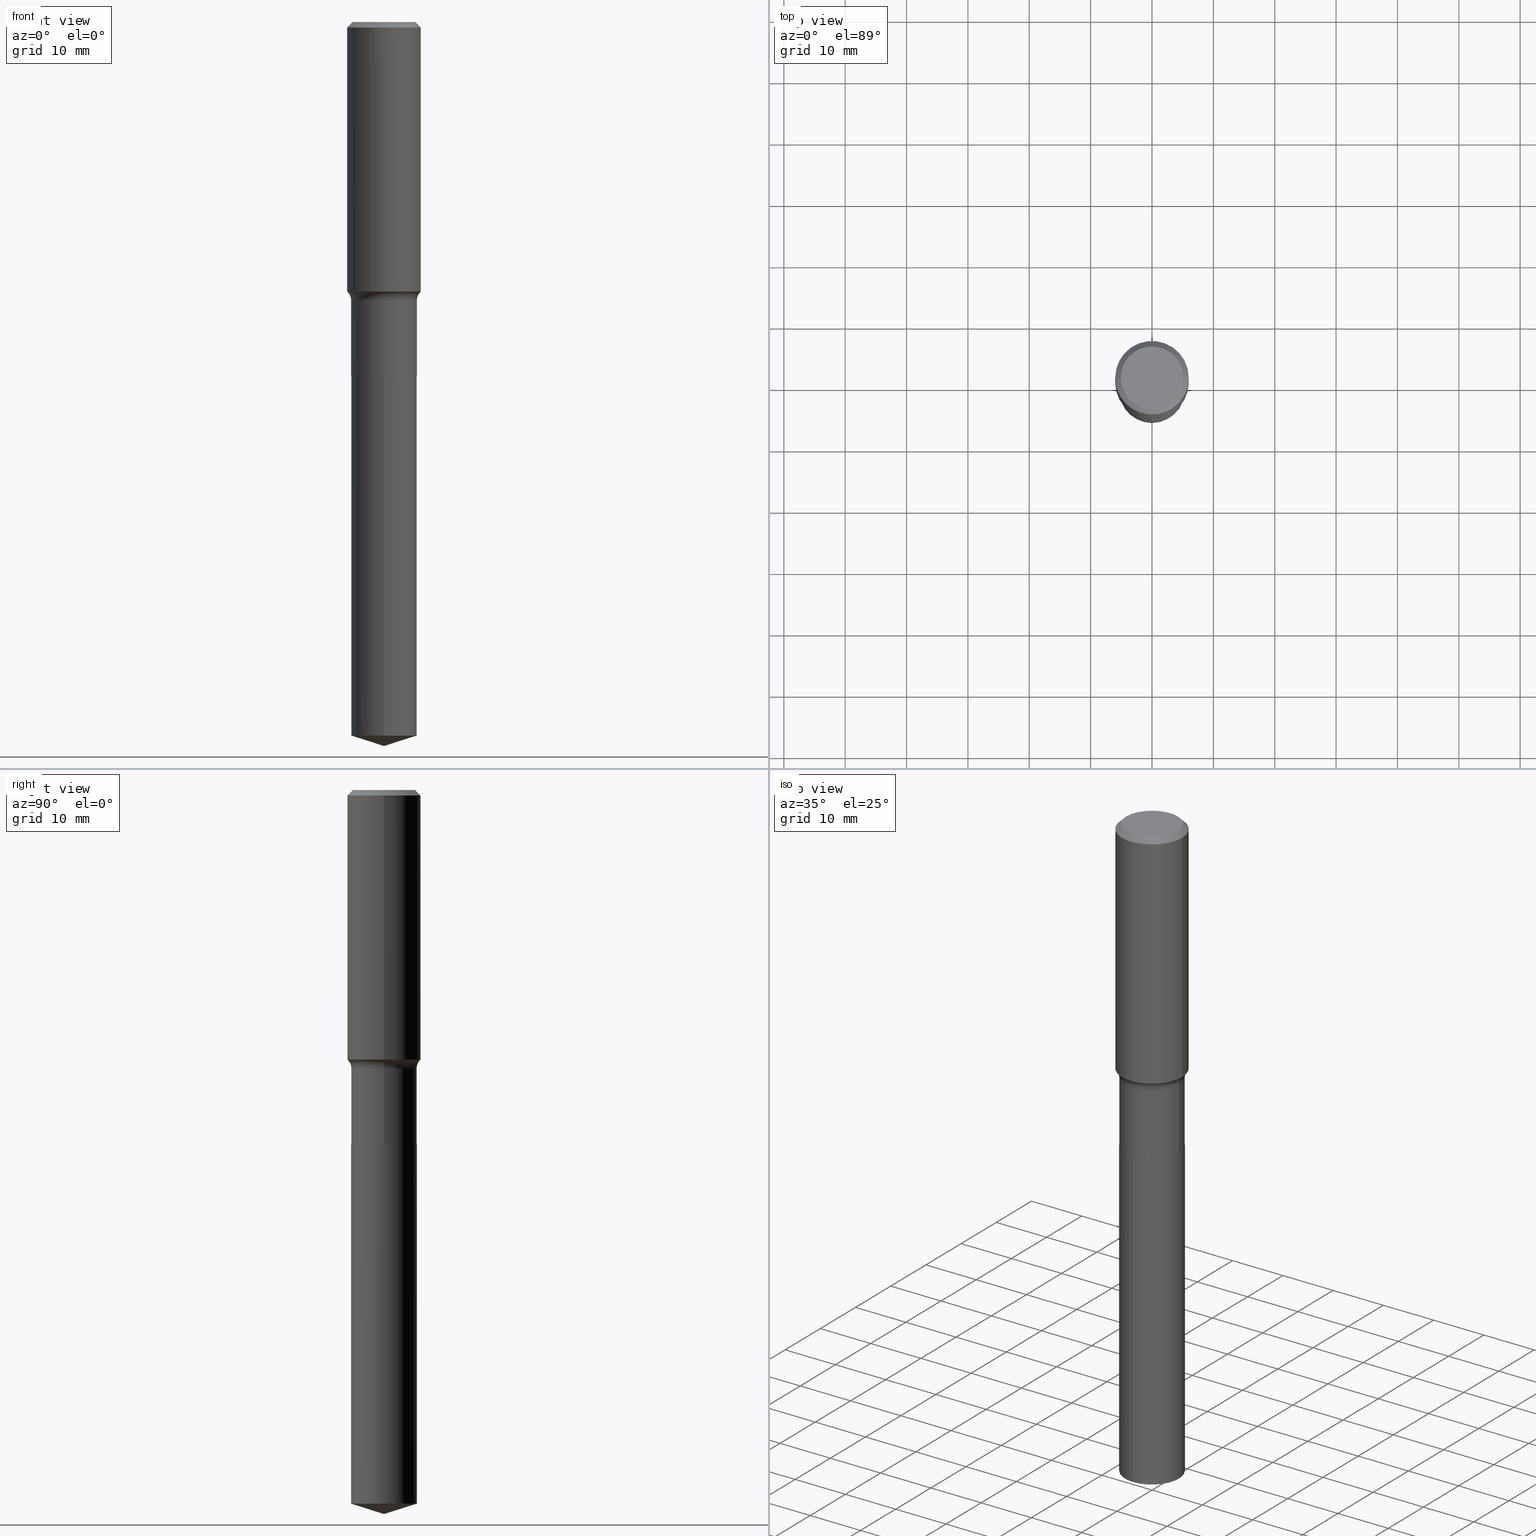
[diagram: canonical four-view strip — front | top / right | iso, engineering-drawing reading convention]
A machine part, canonical four-view strip (front | top / right | iso — engineering-drawing reading convention). The complete STEP part file that produces these views, byte-faithful:
ISO-10303-21;
HEADER;
FILE_DESCRIPTION (( 'STEP AP203' ),
    '1' );
FILE_NAME ('64181.STEP',
    '2024-04-19T15:29:50',
    ( '' ),
    ( '' ),
    'SwSTEP 2.0',
    'SolidWorks 2023',
    '' );
FILE_SCHEMA (( 'CONFIG_CONTROL_DESIGN' ));
ENDSEC;

DATA;
#1 = VECTOR ( 'NONE', #286, 39.37007874015748143 ) ;
#2 = DIRECTION ( 'NONE',  ( -2.445468806185136597E-29, 3.491481338843145583E-15, 1.000000000000000000 ) ) ;
#3 = AXIS2_PLACEMENT_3D ( 'NONE', #55, #200, #362 ) ;
#4 = AXIS2_PLACEMENT_3D ( 'NONE', #156, #394, #347 ) ;
#5 = DIRECTION ( 'NONE',  ( -2.445468806185136597E-29, 3.491481338843145583E-15, 1.000000000000000000 ) ) ;
#6 = ORIENTED_EDGE ( 'NONE', *, *, #278, .F. ) ;
#7 = DIRECTION ( 'NONE',  ( -6.982962677686265922E-15, -1.000000000000000000, 3.500519750498706404E-15 ) ) ;
#8 = CARTESIAN_POINT ( 'NONE',  ( 0.2886499999999999622, -8.255607625694609865E-15, -1.787199999999999900 ) ) ;
#9 = CARTESIAN_POINT ( 'NONE',  ( 8.664295980313993487E-31, -1.237031838352134079E-16, -0.03543000000000021826 ) ) ;
#10 = VERTEX_POINT ( 'NONE', #350 ) ;
#11 =( LENGTH_UNIT ( ) NAMED_UNIT ( * ) SI_UNIT ( $, .METRE. ) );
#12 = CIRCLE ( 'NONE', #284, 0.07799999999999995826 ) ;
#13 = AXIS2_PLACEMENT_3D ( 'NONE', #298, #184, #492 ) ;
#14 = VERTEX_POINT ( 'NONE', #455 ) ;
#15 = CARTESIAN_POINT ( 'NONE',  ( 1.496758272878763482E-15, 0.2106499999999920936, -2.271700000000000053 ) ) ;
#16 = EDGE_CURVE ( 'NONE', #291, #212, #12, .T. ) ;
#17 = LINE ( 'NONE', #220, #214 ) ;
#18 = CARTESIAN_POINT ( 'NONE',  ( 5.554148752607681363E-29, -7.929852416780550200E-15, -2.271199999999999442 ) ) ;
#19 = CIRCLE ( 'NONE', #315, 0.2362000000000002153 ) ;
#20 = PERSON_AND_ORGANIZATION ( #82, #462 ) ;
#21 = AXIS2_PLACEMENT_3D ( 'NONE', #483, #399, #169 ) ;
#22 = CC_DESIGN_DATE_AND_TIME_ASSIGNMENT ( #164, #370, ( #183 ) ) ;
#23 = CALENDAR_DATE ( 2024, 19, 4 ) ;
#24 = AXIS2_PLACEMENT_3D ( 'NONE', #375, #176, #331 ) ;
#25 = PERSON_AND_ORGANIZATION ( #82, #462 ) ;
#26 = CARTESIAN_POINT ( 'NONE',  ( -0.2361999999999999933, 1.525672600634282748E-15, -0.03543000000000021826 ) ) ;
#27 = PERSON_AND_ORGANIZATION_ROLE ( 'design_owner' ) ;
#28 = AXIS2_PLACEMENT_3D ( 'NONE', #269, #110, #44 ) ;
#29 = APPLICATION_PROTOCOL_DEFINITION ( 'international standard', 'config_control_design', 1994, #467 ) ;
#30 = CYLINDRICAL_SURFACE ( 'NONE', #144, 0.2362000000000001043 ) ;
#31 = CYLINDRICAL_SURFACE ( 'NONE', #117, 0.2362000000000001043 ) ;
#32 = DIRECTION ( 'NONE',  ( -2.445468806185136877E-29, 3.491481338843145188E-15, 1.000000000000000000 ) ) ;
#33 = CARTESIAN_POINT ( 'NONE',  ( 0.2106500000000000039, -9.400813504835161960E-15, -2.271199999999999442 ) ) ;
#34 = AXIS2_PLACEMENT_3D ( 'NONE', #458, #388, #225 ) ;
#35 = ORIENTED_EDGE ( 'NONE', *, *, #317, .T. ) ;
#36 = ORIENTED_EDGE ( 'NONE', *, *, #434, .T. ) ;
#37 = CYLINDRICAL_SURFACE ( 'NONE', #288, 0.2106500000000000039 ) ;
#38 = DIRECTION ( 'NONE',  ( -2.445468806185136597E-29, 3.491481338843145583E-15, 1.000000000000000000 ) ) ;
#39 = ORIENTED_EDGE ( 'NONE', *, *, #441, .F. ) ;
#40 = DIRECTION ( 'NONE',  ( -6.982962677686265922E-15, -1.000000000000000000, 3.890597664843479129E-15 ) ) ;
#41 = VECTOR ( 'NONE', #98, 39.37007874015748143 ) ;
#42 = AXIS2_PLACEMENT_3D ( 'NONE', #132, #437, #247 ) ;
#43 = CARTESIAN_POINT ( 'NONE',  ( 1.119856337333996399E-28, -1.598837658358541571E-14, -4.579282310122642308 ) ) ;
#44 = DIRECTION ( 'NONE',  ( 1.000000000000000000, -6.982962677686266711E-15, 4.876140833081945105E-29 ) ) ;
#45 = ORIENTED_EDGE ( 'NONE', *, *, #66, .F. ) ;
#46 = ORIENTED_EDGE ( 'NONE', *, *, #101, .F. ) ;
#47 = LINE ( 'NONE', #230, #479 ) ;
#48 = CARTESIAN_POINT ( 'NONE',  ( -1.470961088054556343E-15, -0.2106500000000079420, -2.271699999999998720 ) ) ;
#49 = AXIS2_PLACEMENT_3D ( 'NONE', #381, #426, #100 ) ;
#50 = CARTESIAN_POINT ( 'NONE',  ( 5.554148752607681363E-29, -7.929852416780550200E-15, -2.271199999999999442 ) ) ;
#51 = EDGE_CURVE ( 'NONE', #194, #145, #303, .T. ) ;
#52 = AXIS2_PLACEMENT_3D ( 'NONE', #446, #383, #40 ) ;
#53 = DIRECTION ( 'NONE',  ( -2.445499716987026041E-29, 3.491437072815506423E-15, 1.000000000000000000 ) ) ;
#54 = COORDINATED_UNIVERSAL_TIME_OFFSET ( 5, 0, .BEHIND. ) ;
#55 = CARTESIAN_POINT ( 'NONE',  ( 5.555371487010773044E-29, -7.931598157449970914E-15, -2.271699999999999608 ) ) ;
#56 = ORIENTED_EDGE ( 'NONE', *, *, #385, .T. ) ;
#57 = CARTESIAN_POINT ( 'NONE',  ( 0.000000000000000000, 0.000000000000000000, 0.000000000000000000 ) ) ;
#58 = LOCAL_TIME ( 11, 29, 50.00000000000000000, #95 ) ;
#59 = COORDINATED_UNIVERSAL_TIME_OFFSET ( 5, 0, .BEHIND. ) ;
#60 = ORIENTED_EDGE ( 'NONE', *, *, #441, .T. ) ;
#61 = DIRECTION ( 'NONE',  ( 2.438088387897960049E-29, -3.491481338843145188E-15, -1.000000000000000000 ) ) ;
#62 = AXIS2_PLACEMENT_3D ( 'NONE', #43, #356, #161 ) ;
#63 = DIRECTION ( 'NONE',  ( -6.659769872151631300E-15, -0.9537169507482265995, 0.3007057995042740073 ) ) ;
#64 = CARTESIAN_POINT ( 'NONE',  ( 0.000000000000000000, 0.000000000000000000, 0.000000000000000000 ) ) ;
#65 = DIRECTION ( 'NONE',  ( -2.445468806185136597E-29, 3.491481338843145583E-15, 1.000000000000000000 ) ) ;
#66 = EDGE_CURVE ( 'NONE', #10, #457, #463, .T. ) ;
#67 = DIRECTION ( 'NONE',  ( -2.445499716987026041E-29, 3.491437072815506423E-15, 1.000000000000000000 ) ) ;
#68 = CIRCLE ( 'NONE', #28, 0.2007700000000000040 ) ;
#69 = PLANE ( 'NONE',  #152 ) ;
#70 = PRODUCT_DEFINITION_SHAPE ( 'NONE', 'NONE',  #183 ) ;
#71 = CARTESIAN_POINT ( 'NONE',  ( 4.229359755644966557E-29, -6.038404834582329294E-15, -1.729467881556277398 ) ) ;
#72 = AXIS2_PLACEMENT_3D ( 'NONE', #9, #83, #427 ) ;
#73 = PRODUCT_RELATED_PRODUCT_CATEGORY ( 'detail', '', ( #219 ) ) ;
#74 = FACE_OUTER_BOUND ( 'NONE', #440, .T. ) ;
#75 = CIRCLE ( 'NONE', #3, 0.2101500000000000035 ) ;
#76 = VERTEX_POINT ( 'NONE', #461 ) ;
#77 = DIRECTION ( 'NONE',  ( -2.445468806185136877E-29, 3.491481338843145188E-15, 1.000000000000000000 ) ) ;
#78 = SECURITY_CLASSIFICATION ( '', '', #468 ) ;
#79 = ORIENTED_EDGE ( 'NONE', *, *, #257, .F. ) ;
#80 = DIRECTION ( 'NONE',  ( -2.445499716987026041E-29, 3.491437072815506423E-15, 1.000000000000000000 ) ) ;
#81 = DIRECTION ( 'NONE',  ( 0.7071067811865453523, -7.319954787623248157E-15, -0.7071067811865496822 ) ) ;
#82 = PERSON ( 'UNSPECIFIED', 'UNSPECIFIED', 'UNSPECIFIED', ('UNSPECIFIED'), ('UNSPECIFIED'), ('UNSPECIFIED') ) ;
#83 = DIRECTION ( 'NONE',  ( 2.445468806185136597E-29, -3.491481338843145583E-15, -1.000000000000000000 ) ) ;
#84 = MANIFOLD_SOLID_BREP ( 'Body-Move/Copy2[2]', #430 ) ;
#85 = DIRECTION ( 'NONE',  ( -2.445499716987026041E-29, 3.491437072815506423E-15, 1.000000000000000000 ) ) ;
#86 = ORIENTED_EDGE ( 'NONE', *, *, #134, .T. ) ;
#87 = DIRECTION ( 'NONE',  ( -6.982962677686266711E-15, -1.000000000000000000, 3.491481338843145583E-15 ) ) ;
#88 = APPROVAL_PERSON_ORGANIZATION ( #435, #226, #283 ) ;
#89 = EDGE_CURVE ( 'NONE', #391, #194, #68, .T. ) ;
#90 = COORDINATED_UNIVERSAL_TIME_OFFSET ( 5, 0, .BEHIND. ) ;
#91 = CALENDAR_DATE ( 2024, 19, 4 ) ;
#92 = CIRCLE ( 'NONE', #271, 0.07799999999999995826 ) ;
#93 = ORIENTED_EDGE ( 'NONE', *, *, #289, .F. ) ;
#94 = CC_DESIGN_PERSON_AND_ORGANIZATION_ASSIGNMENT ( #25, #167, ( #78 ) ) ;
#95 = COORDINATED_UNIVERSAL_TIME_OFFSET ( 5, 0, .BEHIND. ) ;
#96 = EDGE_CURVE ( 'NONE', #372, #76, #188, .T. ) ;
#97 = LINE ( 'NONE', #330, #354 ) ;
#98 = DIRECTION ( 'NONE',  ( 0.7071067811866199593, -2.468850131083015945E-15, 0.7071067811864750752 ) ) ;
#99 = EDGE_LOOP ( 'NONE', ( #453, #111 ) ) ;
#100 = DIRECTION ( 'NONE',  ( 1.000000000000000000, -6.982962677686266711E-15, 0.000000000000000000 ) ) ;
#101 = EDGE_CURVE ( 'NONE', #485, #487, #401, .T. ) ;
#102 = LINE ( 'NONE', #178, #373 ) ;
#103 = AXIS2_PLACEMENT_3D ( 'NONE', #254, #2, #210 ) ;
#104 = CARTESIAN_POINT ( 'NONE',  ( -5.008488096090115757E-47, 7.150793614331959538E-33, 2.048068690724057264E-18 ) ) ;
#105 = DIRECTION ( 'NONE',  ( 1.000000000000000000, -6.982962677686266711E-15, 4.876176775795935793E-29 ) ) ;
#106 = DIRECTION ( 'NONE',  ( -6.982962677686265922E-15, -1.000000000000000000, 2.593731776562319814E-15 ) ) ;
#107 = CIRCLE ( 'NONE', #227, 0.2361999999999999933 ) ;
#108 = ORIENTED_EDGE ( 'NONE', *, *, #436, .F. ) ;
#109 =( CONVERSION_BASED_UNIT ( 'INCH', #429 ) LENGTH_UNIT ( ) NAMED_UNIT ( #459 ) );
#110 = DIRECTION ( 'NONE',  ( -2.445468806185136597E-29, 3.491481338843145583E-15, 1.000000000000000000 ) ) ;
#111 = ORIENTED_EDGE ( 'NONE', *, *, #158, .T. ) ;
#112 = DIRECTION ( 'NONE',  ( 1.000000000000000000, -6.982962677686265922E-15, 4.876176775795935793E-29 ) ) ;
#113 = CARTESIAN_POINT ( 'NONE',  ( 0.2007700000000000040, -1.560767496960719672E-15, 4.096137381458473721E-18 ) ) ;
#114 = ORIENTED_EDGE ( 'NONE', *, *, #434, .F. ) ;
#115 = DIRECTION ( 'NONE',  ( -2.445468806185136597E-29, 3.491481338843145583E-15, 1.000000000000000000 ) ) ;
#116 = ORIENTED_EDGE ( 'NONE', *, *, #257, .T. ) ;
#117 = AXIS2_PLACEMENT_3D ( 'NONE', #258, #38, #105 ) ;
#118 = EDGE_LOOP ( 'NONE', ( #165, #448, #108 ) ) ;
#119 = CARTESIAN_POINT ( 'NONE',  ( 4.370541850414076546E-29, -6.239975448780469270E-15, -1.787199999999999900 ) ) ;
#120 = LOCAL_TIME ( 11, 29, 50.00000000000000000, #245 ) ;
#121 = DIRECTION ( 'NONE',  ( -2.445468806185136597E-29, 3.491481338843145583E-15, 1.000000000000000000 ) ) ;
#122 = LINE ( 'NONE', #240, #138 ) ;
#123 =( NAMED_UNIT ( * ) SI_UNIT ( $, .STERADIAN. ) SOLID_ANGLE_UNIT ( ) );
#124 = CLOSED_SHELL ( 'NONE', ( #342, #175, #473, #328, #384 ) ) ;
#125 = CC_DESIGN_SECURITY_CLASSIFICATION ( #78, ( #374 ) ) ;
#126 = PERSON_AND_ORGANIZATION_ROLE ( 'design_supplier' ) ;
#127 = DIRECTION ( 'NONE',  ( -2.445468806185136597E-29, 3.491481338843145583E-15, 1.000000000000000000 ) ) ;
#128 = PERSON_AND_ORGANIZATION ( #82, #462 ) ;
#129 = ORIENTED_EDGE ( 'NONE', *, *, #223, .T. ) ;
#130 = DATE_TIME_ROLE ( 'classification_date' ) ;
#131 = VERTEX_POINT ( 'NONE', #357 ) ;
#132 = CARTESIAN_POINT ( 'NONE',  ( 0.000000000000000000, 0.000000000000000000, 0.000000000000000000 ) ) ;
#133 = CONICAL_SURFACE ( 'NONE', #432, 124.8659371009149908, 1.265363707695891460 ) ;
#134 = EDGE_CURVE ( 'NONE', #10, #131, #97, .T. ) ;
#135 = AXIS2_PLACEMENT_3D ( 'NONE', #251, #147, #106 ) ;
#136 = ORIENTED_EDGE ( 'NONE', *, *, #162, .F. ) ;
#137 = ORIENTED_EDGE ( 'NONE', *, *, #443, .T. ) ;
#138 = VECTOR ( 'NONE', #154, 39.37007874015748143 ) ;
#139 = DIRECTION ( 'NONE',  ( -2.445468806185136597E-29, 3.491481338843145583E-15, 1.000000000000000000 ) ) ;
#140 = ADVANCED_FACE ( 'NONE', ( #209 ), #222, .T. ) ;
#141 = EDGE_CURVE ( 'NONE', #179, #389, #75, .T. ) ;
#142 = CARTESIAN_POINT ( 'NONE',  ( 0.2362000000000002153, -7.687780619051827397E-15, -1.729467881556277398 ) ) ;
#143 = CIRCLE ( 'NONE', #135, 0.2106500000000000039 ) ;
#144 = AXIS2_PLACEMENT_3D ( 'NONE', #64, #139, #376 ) ;
#145 = VERTEX_POINT ( 'NONE', #319 ) ;
#146 = DIRECTION ( 'NONE',  ( 1.000000000000000000, -6.982962677686263555E-15, 0.000000000000000000 ) ) ;
#147 = DIRECTION ( 'NONE',  ( -2.445499716987026041E-29, 3.491437072815506423E-15, 1.000000000000000000 ) ) ;
#148 = CC_DESIGN_PERSON_AND_ORGANIZATION_ASSIGNMENT ( #205, #172, ( #374 ) ) ;
#149 = ORIENTED_EDGE ( 'NONE', *, *, #16, .T. ) ;
#150 = DIRECTION ( 'NONE',  ( 1.000000000000000000, -6.982962677686267499E-15, 0.000000000000000000 ) ) ;
#151 = ORIENTED_EDGE ( 'NONE', *, *, #450, .F. ) ;
#152 = AXIS2_PLACEMENT_3D ( 'NONE', #104, #61, #377 ) ;
#153 = ORIENTED_EDGE ( 'NONE', *, *, #447, .T. ) ;
#154 = DIRECTION ( 'NONE',  ( -2.445499716987026041E-29, 3.491437072815506423E-15, 1.000000000000000000 ) ) ;
#155 = EDGE_LOOP ( 'NONE', ( #329, #280, #371, #151 ) ) ;
#156 = CARTESIAN_POINT ( 'NONE',  ( 0.000000000000000000, 0.000000000000000000, 0.000000000000000000 ) ) ;
#157 = CARTESIAN_POINT ( 'NONE',  ( 0.2361999999999999933, -1.744152810908849053E-15, -0.03543000000000021826 ) ) ;
#158 = EDGE_CURVE ( 'NONE', #194, #391, #275, .T. ) ;
#159 = LOCAL_TIME ( 11, 29, 50.00000000000000000, #54 ) ;
#160 = ORIENTED_EDGE ( 'NONE', *, *, #185, .F. ) ;
#161 = DIRECTION ( 'NONE',  ( -6.982962677686265922E-15, -1.000000000000000000, 2.593731776562319814E-15 ) ) ;
#162 = EDGE_CURVE ( 'NONE', #391, #320, #403, .T. ) ;
#163 = CARTESIAN_POINT ( 'NONE',  ( 1.496758272878762693E-15, 0.2106499999999839612, -4.579282310122643196 ) ) ;
#164 = DATE_AND_TIME ( #318, #159 ) ;
#165 = ORIENTED_EDGE ( 'NONE', *, *, #134, .F. ) ;
#166 = CC_DESIGN_PERSON_AND_ORGANIZATION_ASSIGNMENT ( #277, #475, ( #183 ) ) ;
#167 = PERSON_AND_ORGANIZATION_ROLE ( 'classification_officer' ) ;
#168 = CIRCLE ( 'NONE', #49, 0.2362000000000002153 ) ;
#169 = DIRECTION ( 'NONE',  ( 1.000000000000000000, -6.982962677686263555E-15, 0.000000000000000000 ) ) ;
#170 = ADVANCED_FACE ( 'NONE', ( #324 ), #476, .T. ) ;
#171 = CARTESIAN_POINT ( 'NONE',  ( 4.370541850414076546E-29, -6.239975448780469270E-15, -1.787199999999999900 ) ) ;
#172 = PERSON_AND_ORGANIZATION_ROLE ( 'creator' ) ;
#173 = ADVANCED_FACE ( 'NONE', ( #253 ), #31, .T. ) ;
#174 =( GEOMETRIC_REPRESENTATION_CONTEXT ( 3 ) GLOBAL_UNCERTAINTY_ASSIGNED_CONTEXT ( ( #387 ) ) GLOBAL_UNIT_ASSIGNED_CONTEXT ( ( #109, #312, #123 ) ) REPRESENTATION_CONTEXT ( 'NONE', 'WORKASPACE' ) );
#175 = ADVANCED_FACE ( 'NONE', ( #452 ), #133, .T. ) ;
#176 = DIRECTION ( 'NONE',  ( -2.445468806185136597E-29, 3.491481338843145583E-15, 1.000000000000000000 ) ) ;
#177 = APPROVAL ( #439, 'UNSPECIFIED' ) ;
#178 = CARTESIAN_POINT ( 'NONE',  ( -0.2106499999999999762, 1.496758272878650872E-15, -1.036173676762195916E-29 ) ) ;
#179 = VERTEX_POINT ( 'NONE', #390 ) ;
#180 = FACE_OUTER_BOUND ( 'NONE', #260, .T. ) ;
#181 = CIRCLE ( 'NONE', #62, 0.2106500000000000039 ) ;
#182 = EDGE_LOOP ( 'NONE', ( #217, #229, #149, #221 ) ) ;
#183 = PRODUCT_DEFINITION ( 'UNKNOWN', '', #374, #304 ) ;
#184 = DIRECTION ( 'NONE',  ( 2.445499716987025761E-29, -3.491437072815506423E-15, -1.000000000000000000 ) ) ;
#185 = EDGE_CURVE ( 'NONE', #487, #485, #409, .T. ) ;
#186 = ORIENTED_EDGE ( 'NONE', *, *, #158, .F. ) ;
#187 = DIRECTION ( 'NONE',  ( 2.445468806185136597E-29, -3.491481338843145583E-15, -1.000000000000000000 ) ) ;
#188 = CIRCLE ( 'NONE', #299, 0.2106500000000000039 ) ;
#189 = FACE_OUTER_BOUND ( 'NONE', #491, .T. ) ;
#190 = DIRECTION ( 'NONE',  ( 1.000000000000000000, -6.982962677686261977E-15, 0.000000000000000000 ) ) ;
#191 = ORIENTED_EDGE ( 'NONE', *, *, #101, .T. ) ;
#192 = CARTESIAN_POINT ( 'NONE',  ( -0.2886499999999999622, -4.188993842008940352E-15, -1.787199999999999900 ) ) ;
#193 = AXIS2_PLACEMENT_3D ( 'NONE', #339, #416, #263 ) ;
#194 = VERTEX_POINT ( 'NONE', #113 ) ;
#195 = DIRECTION ( 'NONE',  ( 1.000000000000000000, -6.982962677686265922E-15, 0.000000000000000000 ) ) ;
#196 = VECTOR ( 'NONE', #77, 39.37007874015748143 ) ;
#197 = ADVANCED_FACE ( 'NONE', ( #231 ), #311, .F. ) ;
#198 = DIRECTION ( 'NONE',  ( -1.000000000000000000, 7.105427357601001859E-15, 0.000000000000000000 ) ) ;
#199 = AXIS2_PLACEMENT_3D ( 'NONE', #18, #65, #335 ) ;
#200 = DIRECTION ( 'NONE',  ( -2.445468806185136597E-29, 3.491481338843145583E-15, 1.000000000000000000 ) ) ;
#201 = DIRECTION ( 'NONE',  ( 1.000000000000000000, 0.000000000000000000, 0.000000000000000000 ) ) ;
#202 = AXIS2_PLACEMENT_3D ( 'NONE', #272, #85, #234 ) ;
#203 = CONICAL_SURFACE ( 'NONE', #327, 0.2101500000000000035, 0.7853981633975507526 ) ;
#204 = ADVANCED_FACE ( 'NONE', ( #307 ), #323, .T. ) ;
#205 = PERSON_AND_ORGANIZATION ( #82, #462 ) ;
#206 = EDGE_CURVE ( 'NONE', #212, #14, #474, .T. ) ;
#207 = TOROIDAL_SURFACE ( 'NONE', #34, 0.2886499999999999622, 0.07799999999999999989 ) ;
#208 = DIRECTION ( 'NONE',  ( -0.7071067811866199593, 7.493145998870616062E-15, 0.7071067811864750752 ) ) ;
#209 = FACE_OUTER_BOUND ( 'NONE', #456, .T. ) ;
#210 = DIRECTION ( 'NONE',  ( 1.000000000000000000, -6.982962677686263555E-15, 0.000000000000000000 ) ) ;
#211 = FACE_OUTER_BOUND ( 'NONE', #99, .T. ) ;
#212 = VERTEX_POINT ( 'NONE', #325 ) ;
#213 = CARTESIAN_POINT ( 'NONE',  ( -0.2362000000000002153, -4.360102892716971322E-15, -1.729467881556277398 ) ) ;
#214 = VECTOR ( 'NONE', #396, 39.37007874015748143 ) ;
#215 = ORIENTED_EDGE ( 'NONE', *, *, #89, .F. ) ;
#216 = CARTESIAN_POINT ( 'NONE',  ( 5.555371487010773044E-29, -7.931598157449970914E-15, -2.271699999999999608 ) ) ;
#217 = ORIENTED_EDGE ( 'NONE', *, *, #447, .F. ) ;
#218 = CARTESIAN_POINT ( 'NONE',  ( 5.555371487010773044E-29, -7.931598157449970914E-15, -2.271699999999999608 ) ) ;
#219 = PRODUCT ( '64181', '64181', '', ( #433 ) ) ;
#220 = CARTESIAN_POINT ( 'NONE',  ( -0.2362000000000001043, 1.678301941865357380E-15, -1.161852468318209317E-29 ) ) ;
#221 = ORIENTED_EDGE ( 'NONE', *, *, #206, .T. ) ;
#222 = CONICAL_SURFACE ( 'NONE', #21, 0.2101500000000000035, 0.7853981633975507526 ) ;
#223 = EDGE_CURVE ( 'NONE', #131, #485, #122, .T. ) ;
#224 = ORIENTED_EDGE ( 'NONE', *, *, #443, .F. ) ;
#225 = DIRECTION ( 'NONE',  ( 1.000000000000000000, -6.982962677686264344E-15, 4.883557194083111780E-29 ) ) ;
#226 = APPROVAL ( #241, 'UNSPECIFIED' ) ;
#227 = AXIS2_PLACEMENT_3D ( 'NONE', #237, #115, #353 ) ;
#228 = CARTESIAN_POINT ( 'NONE',  ( -8.491852860167406965E-28, 1.212378827047374463E-13, 34.72437874015748349 ) ) ;
#229 = ORIENTED_EDGE ( 'NONE', *, *, #248, .F. ) ;
#230 = CARTESIAN_POINT ( 'NONE',  ( 1.496758272878706487E-15, 0.2106499999999920936, -2.271700000000000053 ) ) ;
#231 = FACE_OUTER_BOUND ( 'NONE', #264, .T. ) ;
#232 = EDGE_LOOP ( 'NONE', ( #186, #422, #256, #136 ) ) ;
#233 = CARTESIAN_POINT ( 'NONE',  ( 0.2362000000000001043, -1.649375784469496920E-15, 1.151752954443000508E-29 ) ) ;
#234 = DIRECTION ( 'NONE',  ( -6.982962677686265922E-15, -1.000000000000000000, 3.890597664843479129E-15 ) ) ;
#235 = VECTOR ( 'NONE', #81, 39.37007874015748143 ) ;
#236 = ORIENTED_EDGE ( 'NONE', *, *, #141, .F. ) ;
#237 = CARTESIAN_POINT ( 'NONE',  ( 8.664295980313993487E-31, -1.237031838352134079E-16, -0.03543000000000021826 ) ) ;
#238 = EDGE_CURVE ( 'NONE', #76, #372, #420, .T. ) ;
#239 = CC_DESIGN_APPROVAL ( #177, ( #374 ) ) ;
#240 = CARTESIAN_POINT ( 'NONE',  ( -1.470961088054556343E-15, -0.2106500000000079420, -2.271699999999998720 ) ) ;
#241 = APPROVAL_STATUS ( 'not_yet_approved' ) ;
#242 = PERSON_AND_ORGANIZATION ( #82, #462 ) ;
#243 = ORIENTED_EDGE ( 'NONE', *, *, #295, .T. ) ;
#244 = APPROVAL_ROLE ( '' ) ;
#245 = COORDINATED_UNIVERSAL_TIME_OFFSET ( 5, 0, .BEHIND. ) ;
#246 = EDGE_LOOP ( 'NONE', ( #405, #215, #465, #137 ) ) ;
#247 = DIRECTION ( 'NONE',  ( 1.000000000000000000, -6.982962677686266711E-15, 4.876176775795935793E-29 ) ) ;
#248 = EDGE_CURVE ( 'NONE', #291, #305, #168, .T. ) ;
#249 = MANIFOLD_SOLID_BREP ( 'Body-Move/Copy2[1]', #124 ) ;
#250 = ORIENTED_EDGE ( 'NONE', *, *, #185, .T. ) ;
#251 = CARTESIAN_POINT ( 'NONE',  ( 1.119856337333996399E-28, -1.598837658358541571E-14, -4.579282310122642308 ) ) ;
#252 = ORIENTED_EDGE ( 'NONE', *, *, #289, .T. ) ;
#253 = FACE_OUTER_BOUND ( 'NONE', #355, .T. ) ;
#254 = CARTESIAN_POINT ( 'NONE',  ( 5.555371487010773044E-29, -7.931598157449970914E-15, -2.271699999999999608 ) ) ;
#255 = CARTESIAN_POINT ( 'NONE',  ( -0.2361999999999999933, -1.402752067343413662E-15, -0.03543000000000021826 ) ) ;
#256 = ORIENTED_EDGE ( 'NONE', *, *, #397, .T. ) ;
#257 = EDGE_CURVE ( 'NONE', #389, #179, #321, .T. ) ;
#258 = CARTESIAN_POINT ( 'NONE',  ( 0.000000000000000000, 0.000000000000000000, 0.000000000000000000 ) ) ;
#259 = PLANE ( 'NONE',  #13 ) ;
#260 = EDGE_LOOP ( 'NONE', ( #191, #250 ) ) ;
#261 = CARTESIAN_POINT ( 'NONE',  ( 0.2101500000000000035, -9.399067764165739668E-15, -2.271699999999999608 ) ) ;
#262 = ORIENTED_EDGE ( 'NONE', *, *, #223, .F. ) ;
#263 = DIRECTION ( 'NONE',  ( -6.982962677686265922E-15, -1.000000000000000000, 3.890597664843479129E-15 ) ) ;
#264 = EDGE_LOOP ( 'NONE', ( #79, #236 ) ) ;
#265 = CONICAL_SURFACE ( 'NONE', #406, 0.2361999999999999933, 0.7853981633974452814 ) ;
#266 = ADVANCED_FACE ( 'NONE', ( #444 ), #265, .T. ) ;
#267 = EDGE_LOOP ( 'NONE', ( #116, #294, #352, #364 ) ) ;
#268 = FACE_OUTER_BOUND ( 'NONE', #346, .T. ) ;
#269 = CARTESIAN_POINT ( 'NONE',  ( -1.001697619218023151E-46, 1.430158722866391908E-32, 4.096137381448114529E-18 ) ) ;
#270 = DIRECTION ( 'NONE',  ( 1.000000000000000000, -6.982962677686264344E-15, 4.883557194083111780E-29 ) ) ;
#271 = AXIS2_PLACEMENT_3D ( 'NONE', #192, #309, #198 ) ;
#272 = CARTESIAN_POINT ( 'NONE',  ( 5.555371487010773044E-29, -7.931598157449970914E-15, -2.271699999999999608 ) ) ;
#273 = APPLICATION_PROTOCOL_DEFINITION ( 'international standard', 'config_control_design', 1994, #287 ) ;
#274 = AXIS2_PLACEMENT_3D ( 'NONE', #481, #442, #150 ) ;
#275 = CIRCLE ( 'NONE', #482, 0.2007700000000000040 ) ;
#276 = TOROIDAL_SURFACE ( 'NONE', #313, 0.2886499999999999622, 0.07799999999999999989 ) ;
#277 = PERSON_AND_ORGANIZATION ( #82, #462 ) ;
#278 = EDGE_CURVE ( 'NONE', #14, #212, #368, .T. ) ;
#279 = DIRECTION ( 'NONE',  ( 1.000000000000000000, -6.982962677686267499E-15, 0.000000000000000000 ) ) ;
#280 = ORIENTED_EDGE ( 'NONE', *, *, #398, .T. ) ;
#281 = DIRECTION ( 'NONE',  ( 0.000000000000000000, 0.000000000000000000, 1.000000000000000000 ) ) ;
#282 = DIRECTION ( 'NONE',  ( -2.445468806185136597E-29, 3.491481338843145583E-15, 1.000000000000000000 ) ) ;
#283 = APPROVAL_ROLE ( '' ) ;
#284 = AXIS2_PLACEMENT_3D ( 'NONE', #8, #87, #190 ) ;
#285 = ORIENTED_EDGE ( 'NONE', *, *, #206, .F. ) ;
#286 = DIRECTION ( 'NONE',  ( -0.7071067811865453523, 2.468850131082234184E-15, -0.7071067811865496822 ) ) ;
#287 = APPLICATION_CONTEXT ( 'configuration controlled 3d designs of mechanical parts and assemblies' ) ;
#288 = AXIS2_PLACEMENT_3D ( 'NONE', #216, #67, #296 ) ;
#289 = EDGE_CURVE ( 'NONE', #305, #291, #19, .T. ) ;
#290 = DATE_AND_TIME ( #322, #58 ) ;
#291 = VERTEX_POINT ( 'NONE', #142 ) ;
#292 = DIRECTION ( 'NONE',  ( 1.000000000000000000, -6.982962677686266711E-15, 0.000000000000000000 ) ) ;
#293 = FACE_OUTER_BOUND ( 'NONE', #334, .T. ) ;
#294 = ORIENTED_EDGE ( 'NONE', *, *, #393, .T. ) ;
#295 = EDGE_CURVE ( 'NONE', #389, #372, #341, .T. ) ;
#296 = DIRECTION ( 'NONE',  ( -6.982962677686265922E-15, -1.000000000000000000, 3.890597664843479129E-15 ) ) ;
#297 = ORIENTED_EDGE ( 'NONE', *, *, #450, .T. ) ;
#298 = CARTESIAN_POINT ( 'NONE',  ( 5.555371487010773044E-29, -7.931598157449970914E-15, -2.271699999999999608 ) ) ;
#299 = AXIS2_PLACEMENT_3D ( 'NONE', #50, #121, #195 ) ;
#300 = ADVANCED_FACE ( 'NONE', ( #301 ), #30, .T. ) ;
#301 = FACE_OUTER_BOUND ( 'NONE', #155, .T. ) ;
#302 = LOCAL_TIME ( 11, 29, 50.00000000000000000, #59 ) ;
#303 = LINE ( 'NONE', #157, #235 ) ;
#304 = DESIGN_CONTEXT ( 'detailed design', #467, 'design' ) ;
#305 = VERTEX_POINT ( 'NONE', #213 ) ;
#306 = ORIENTED_EDGE ( 'NONE', *, *, #238, .T. ) ;
#307 = FACE_OUTER_BOUND ( 'NONE', #246, .T. ) ;
#308 = EDGE_LOOP ( 'NONE', ( #39, #56, #129, #160 ) ) ;
#309 = DIRECTION ( 'NONE',  ( 7.105427357601001859E-15, 1.000000000000000000, -3.491481338843145583E-15 ) ) ;
#310 = DIRECTION ( 'NONE',  ( 6.776566513254256560E-15, 0.9537169507482287090, 0.3007057995042674015 ) ) ;
#311 = PLANE ( 'NONE',  #490 ) ;
#312 =( NAMED_UNIT ( * ) PLANE_ANGLE_UNIT ( ) SI_UNIT ( $, .RADIAN. ) );
#313 = AXIS2_PLACEMENT_3D ( 'NONE', #119, #5, #270 ) ;
#314 = APPROVAL_DATE_TIME ( #402, #177 ) ;
#315 = AXIS2_PLACEMENT_3D ( 'NONE', #71, #412, #292 ) ;
#316 = APPROVAL_DATE_TIME ( #477, #344 ) ;
#317 = EDGE_CURVE ( 'NONE', #76, #14, #102, .T. ) ;
#318 = CALENDAR_DATE ( 2024, 19, 4 ) ;
#319 = CARTESIAN_POINT ( 'NONE',  ( 0.2361999999999999933, -1.773078968304709514E-15, -0.03543000000000021826 ) ) ;
#320 = VERTEX_POINT ( 'NONE', #255 ) ;
#321 = CIRCLE ( 'NONE', #103, 0.2101500000000000035 ) ;
#322 = CALENDAR_DATE ( 2024, 19, 4 ) ;
#323 = CONICAL_SURFACE ( 'NONE', #72, 0.2361999999999999933, 0.7853981633974452814 ) ;
#324 = FACE_OUTER_BOUND ( 'NONE', #460, .T. ) ;
#325 = CARTESIAN_POINT ( 'NONE',  ( 0.2106499999999999484, -7.710936536835081819E-15, -1.787199999999999900 ) ) ;
#326 = APPROVAL_STATUS ( 'not_yet_approved' ) ;
#327 = AXIS2_PLACEMENT_3D ( 'NONE', #449, #410, #146 ) ;
#328 = ADVANCED_FACE ( 'NONE', ( #337 ), #333, .T. ) ;
#329 = ORIENTED_EDGE ( 'NONE', *, *, #248, .T. ) ;
#330 = CARTESIAN_POINT ( 'NONE',  ( 1.136091759506932169E-28, -1.622037032744897260E-14, -4.645699999999999719 ) ) ;
#331 = DIRECTION ( 'NONE',  ( 1.000000000000000000, -6.982962677686266711E-15, 0.000000000000000000 ) ) ;
#332 = CC_DESIGN_PERSON_AND_ORGANIZATION_ASSIGNMENT ( #20, #126, ( #374 ) ) ;
#333 = CYLINDRICAL_SURFACE ( 'NONE', #52, 0.2106500000000000039 ) ;
#334 = EDGE_LOOP ( 'NONE', ( #471, #60, #46, #262 ) ) ;
#335 = DIRECTION ( 'NONE',  ( 1.000000000000000000, -6.982962677686265922E-15, 0.000000000000000000 ) ) ;
#336 = AXIS2_PLACEMENT_3D ( 'NONE', #466, #80, #7 ) ;
#337 = FACE_OUTER_BOUND ( 'NONE', #308, .T. ) ;
#338 = ORIENTED_EDGE ( 'NONE', *, *, #317, .F. ) ;
#339 = CARTESIAN_POINT ( 'NONE',  ( 5.555371487010773044E-29, -7.931598157449970914E-15, -2.271699999999999608 ) ) ;
#340 = ORIENTED_EDGE ( 'NONE', *, *, #385, .F. ) ;
#341 = LINE ( 'NONE', #488, #41 ) ;
#342 = ADVANCED_FACE ( 'NONE', ( #293 ), #37, .T. ) ;
#343 = FACE_OUTER_BOUND ( 'NONE', #267, .T. ) ;
#344 = APPROVAL ( #326, 'UNSPECIFIED' ) ;
#345 = DIRECTION ( 'NONE',  ( -2.438088387897960049E-29, 3.491481338843145188E-15, 1.000000000000000000 ) ) ;
#346 = EDGE_LOOP ( 'NONE', ( #93, #153, #382, #421 ) ) ;
#347 = DIRECTION ( 'NONE',  ( 1.000000000000000000, -6.982962677686266711E-15, 4.876176775795935793E-29 ) ) ;
#348 = AXIS2_PLACEMENT_3D ( 'NONE', #57, #281, #201 ) ;
#349 = CYLINDRICAL_SURFACE ( 'NONE', #4, 0.2106499999999999762 ) ;
#350 = CARTESIAN_POINT ( 'NONE',  ( 1.136105803520662510E-28, -1.622016920917899655E-14, -4.645699999999999719 ) ) ;
#351 = ADVANCED_FACE ( 'NONE', ( #343 ), #203, .T. ) ;
#352 = ORIENTED_EDGE ( 'NONE', *, *, #96, .F. ) ;
#353 = DIRECTION ( 'NONE',  ( 1.000000000000000000, -6.982962677686266711E-15, 0.000000000000000000 ) ) ;
#354 = VECTOR ( 'NONE', #63, 39.37007874015748854 ) ;
#355 = EDGE_LOOP ( 'NONE', ( #478, #252, #297, #224 ) ) ;
#356 = DIRECTION ( 'NONE',  ( -2.445499716987026041E-29, 3.491437072815506423E-15, 1.000000000000000000 ) ) ;
#357 = CARTESIAN_POINT ( 'NONE',  ( -1.470961088054499348E-15, -0.2106500000000159634, -4.579282310122641420 ) ) ;
#358 = APPROVAL_PERSON_ORGANIZATION ( #128, #177, #244 ) ;
#359 = LINE ( 'NONE', #233, #425 ) ;
#360 = AXIS2_PLACEMENT_3D ( 'NONE', #171, #127, #279 ) ;
#361 = ADVANCED_FACE ( 'NONE', ( #211 ), #69, .F. ) ;
#362 = DIRECTION ( 'NONE',  ( 1.000000000000000000, -6.982962677686263555E-15, 0.000000000000000000 ) ) ;
#363 = PERSON_AND_ORGANIZATION ( #82, #462 ) ;
#364 = ORIENTED_EDGE ( 'NONE', *, *, #295, .F. ) ;
#365 = CC_DESIGN_APPROVAL ( #226, ( #78 ) ) ;
#366 = APPROVAL_ROLE ( '' ) ;
#367 = DIRECTION ( 'NONE',  ( 1.000000000000000000, -6.982962677686266711E-15, 4.876140833081945105E-29 ) ) ;
#368 = CIRCLE ( 'NONE', #274, 0.2106499999999999484 ) ;
#369 = CC_DESIGN_DATE_AND_TIME_ASSIGNMENT ( #290, #130, ( #78 ) ) ;
#370 = DATE_TIME_ROLE ( 'creation_date' ) ;
#371 = ORIENTED_EDGE ( 'NONE', *, *, #397, .F. ) ;
#372 = VERTEX_POINT ( 'NONE', #33 ) ;
#373 = VECTOR ( 'NONE', #32, 39.37007874015748143 ) ;
#374 = PRODUCT_DEFINITION_FORMATION_WITH_SPECIFIED_SOURCE ( 'ANY', '', #219, .NOT_KNOWN. ) ;
#375 = CARTESIAN_POINT ( 'NONE',  ( 8.664295980313993487E-31, -1.237031838352134079E-16, -0.03543000000000021826 ) ) ;
#376 = DIRECTION ( 'NONE',  ( 1.000000000000000000, -6.982962677686266711E-15, 4.876176775795935793E-29 ) ) ;
#377 = DIRECTION ( 'NONE',  ( -1.000000000000000000, 6.982962677686265922E-15, -4.876176775795935793E-29 ) ) ;
#378 = VECTOR ( 'NONE', #310, 39.37007874015748143 ) ;
#379 = ORIENTED_EDGE ( 'NONE', *, *, #393, .F. ) ;
#380 = CC_DESIGN_APPROVAL ( #344, ( #183 ) ) ;
#381 = CARTESIAN_POINT ( 'NONE',  ( 4.229359755644966557E-29, -6.038404834582329294E-15, -1.729467881556277398 ) ) ;
#382 = ORIENTED_EDGE ( 'NONE', *, *, #278, .T. ) ;
#383 = DIRECTION ( 'NONE',  ( -2.445499716987026041E-29, 3.491437072815506423E-15, 1.000000000000000000 ) ) ;
#384 = ADVANCED_FACE ( 'NONE', ( #180 ), #259, .F. ) ;
#385 = EDGE_CURVE ( 'NONE', #457, #131, #143, .T. ) ;
#386 = LINE ( 'NONE', #407, #438 ) ;
#387 = UNCERTAINTY_MEASURE_WITH_UNIT (LENGTH_MEASURE( 1.000000000000000082E-05 ), #109, 'distance_accuracy_value', 'NONE');
#388 = DIRECTION ( 'NONE',  ( -2.445468806185136597E-29, 3.491481338843145583E-15, 1.000000000000000000 ) ) ;
#389 = VERTEX_POINT ( 'NONE', #261 ) ;
#390 = CARTESIAN_POINT ( 'NONE',  ( -0.2101500000000000035, -6.435743371076010331E-15, -2.271699999999999608 ) ) ;
#391 = VERTEX_POINT ( 'NONE', #417 ) ;
#392 = LINE ( 'NONE', #423, #196 ) ;
#393 = EDGE_CURVE ( 'NONE', #179, #76, #386, .T. ) ;
#394 = DIRECTION ( 'NONE',  ( -2.445468806185136597E-29, 3.491481338843145583E-15, 1.000000000000000000 ) ) ;
#395 = CARTESIAN_POINT ( 'NONE',  ( 1.136105926670085346E-28, -1.622016920917899655E-14, -4.645699999999999719 ) ) ;
#396 = DIRECTION ( 'NONE',  ( -2.445468806185136877E-29, 3.491481338843145188E-15, 1.000000000000000000 ) ) ;
#397 = EDGE_CURVE ( 'NONE', #145, #320, #415, .T. ) ;
#398 = EDGE_CURVE ( 'NONE', #305, #320, #17, .T. ) ;
#399 = DIRECTION ( 'NONE',  ( -2.445468806185136597E-29, 3.491481338843145583E-15, 1.000000000000000000 ) ) ;
#400 = APPROVAL_DATE_TIME ( #470, #226 ) ;
#401 = CIRCLE ( 'NONE', #202, 0.2106500000000000039 ) ;
#402 = DATE_AND_TIME ( #431, #302 ) ;
#403 = LINE ( 'NONE', #26, #1 ) ;
#404 = SHAPE_DEFINITION_REPRESENTATION ( #70, #464 ) ;
#405 = ORIENTED_EDGE ( 'NONE', *, *, #51, .F. ) ;
#406 = AXIS2_PLACEMENT_3D ( 'NONE', #484, #187, #408 ) ;
#407 = CARTESIAN_POINT ( 'NONE',  ( -0.2101500000000000035, -6.438392598250120744E-15, -2.271699999999999608 ) ) ;
#408 = DIRECTION ( 'NONE',  ( -1.000000000000000000, 6.982962677686266711E-15, 0.000000000000000000 ) ) ;
#409 = CIRCLE ( 'NONE', #193, 0.2106500000000000039 ) ;
#410 = DIRECTION ( 'NONE',  ( -2.445468806185136597E-29, 3.491481338843145583E-15, 1.000000000000000000 ) ) ;
#411 = DIRECTION ( 'NONE',  ( -2.445499716987026041E-29, 3.491437072815506423E-15, 1.000000000000000000 ) ) ;
#412 = DIRECTION ( 'NONE',  ( -2.445468806185136597E-29, 3.491481338843145583E-15, 1.000000000000000000 ) ) ;
#413 = ORIENTED_EDGE ( 'NONE', *, *, #141, .T. ) ;
#414 = CC_DESIGN_PERSON_AND_ORGANIZATION_ASSIGNMENT ( #242, #27, ( #219 ) ) ;
#415 = CIRCLE ( 'NONE', #24, 0.2361999999999999933 ) ;
#416 = DIRECTION ( 'NONE',  ( -2.445499716987026041E-29, 3.491437072815506423E-15, 1.000000000000000000 ) ) ;
#417 = CARTESIAN_POINT ( 'NONE',  ( -0.2007700000000000040, 1.463821008716677338E-15, 4.096137381438094301E-18 ) ) ;
#418 = ADVANCED_FACE ( 'NONE', ( #268 ), #207, .F. ) ;
#419 = DIRECTION ( 'NONE',  ( -6.982962677686265922E-15, -1.000000000000000000, 3.500519750498706404E-15 ) ) ;
#420 = CIRCLE ( 'NONE', #199, 0.2106500000000000039 ) ;
#421 = ORIENTED_EDGE ( 'NONE', *, *, #16, .F. ) ;
#422 = ORIENTED_EDGE ( 'NONE', *, *, #51, .T. ) ;
#423 = CARTESIAN_POINT ( 'NONE',  ( 0.2106499999999999762, -1.470961088054611958E-15, 1.027166637821413806E-29 ) ) ;
#424 = DIRECTION ( 'NONE',  ( -2.445468806185136877E-29, 3.491481338843145188E-15, 1.000000000000000000 ) ) ;
#425 = VECTOR ( 'NONE', #424, 39.37007874015748143 ) ;
#426 = DIRECTION ( 'NONE',  ( -2.445468806185136597E-29, 3.491481338843145583E-15, 1.000000000000000000 ) ) ;
#427 = DIRECTION ( 'NONE',  ( -1.000000000000000000, 6.982962677686266711E-15, 0.000000000000000000 ) ) ;
#428 = ORIENTED_EDGE ( 'NONE', *, *, #238, .F. ) ;
#429 = LENGTH_MEASURE_WITH_UNIT ( LENGTH_MEASURE( 0.02539999999999999897 ), #11 );
#430 = CLOSED_SHELL ( 'NONE', ( #351, #266, #300, #418, #170, #480, #489, #173, #204, #361, #197, #140 ) ) ;
#431 = CALENDAR_DATE ( 2024, 19, 4 ) ;
#432 = AXIS2_PLACEMENT_3D ( 'NONE', #228, #411, #419 ) ;
#433 = MECHANICAL_CONTEXT ( 'NONE', #287, 'mechanical' ) ;
#434 = EDGE_CURVE ( 'NONE', #372, #212, #392, .T. ) ;
#435 = PERSON_AND_ORGANIZATION ( #82, #462 ) ;
#436 = EDGE_CURVE ( 'NONE', #131, #457, #181, .T. ) ;
#437 = DIRECTION ( 'NONE',  ( -2.445468806185136597E-29, 3.491481338843145583E-15, 1.000000000000000000 ) ) ;
#438 = VECTOR ( 'NONE', #208, 39.37007874015748143 ) ;
#439 = APPROVAL_STATUS ( 'not_yet_approved' ) ;
#440 = EDGE_LOOP ( 'NONE', ( #338, #306, #36, #6 ) ) ;
#441 = EDGE_CURVE ( 'NONE', #457, #487, #47, .T. ) ;
#442 = DIRECTION ( 'NONE',  ( -2.445468806185136597E-29, 3.491481338843145583E-15, 1.000000000000000000 ) ) ;
#443 = EDGE_CURVE ( 'NONE', #320, #145, #107, .T. ) ;
#444 = FACE_OUTER_BOUND ( 'NONE', #232, .T. ) ;
#445 = ORIENTED_EDGE ( 'NONE', *, *, #96, .T. ) ;
#446 = CARTESIAN_POINT ( 'NONE',  ( 5.555371487010773044E-29, -7.931598157449970914E-15, -2.271699999999999608 ) ) ;
#447 = EDGE_CURVE ( 'NONE', #305, #14, #92, .T. ) ;
#448 = ORIENTED_EDGE ( 'NONE', *, *, #66, .T. ) ;
#449 = CARTESIAN_POINT ( 'NONE',  ( 5.555371487010773044E-29, -7.931598157449970914E-15, -2.271699999999999608 ) ) ;
#450 = EDGE_CURVE ( 'NONE', #291, #145, #359, .T. ) ;
#451 = APPROVAL_PERSON_ORGANIZATION ( #363, #344, #366 ) ;
#452 = FACE_OUTER_BOUND ( 'NONE', #118, .T. ) ;
#453 = ORIENTED_EDGE ( 'NONE', *, *, #89, .T. ) ;
#454 = FACE_OUTER_BOUND ( 'NONE', #182, .T. ) ;
#455 = CARTESIAN_POINT ( 'NONE',  ( -0.2106499999999999484, -5.588155659901859060E-15, -1.787199999999999900 ) ) ;
#456 = EDGE_LOOP ( 'NONE', ( #379, #413, #243, #428 ) ) ;
#457 = VERTEX_POINT ( 'NONE', #163 ) ;
#458 = CARTESIAN_POINT ( 'NONE',  ( 4.370541850414076546E-29, -6.239975448780469270E-15, -1.787199999999999900 ) ) ;
#459 = DIMENSIONAL_EXPONENTS ( 1.000000000000000000, 0.000000000000000000, 0.000000000000000000, 0.000000000000000000, 0.000000000000000000, 0.000000000000000000, 0.000000000000000000 ) ;
#460 = EDGE_LOOP ( 'NONE', ( #445, #35, #285, #114 ) ) ;
#461 = CARTESIAN_POINT ( 'NONE',  ( -0.2106500000000000039, -5.588155659901859060E-15, -2.271199999999999442 ) ) ;
#462 = ORGANIZATION ( 'UNSPECIFIED', 'UNSPECIFIED', '' ) ;
#463 = LINE ( 'NONE', #395, #378 ) ;
#464 = ADVANCED_BREP_SHAPE_REPRESENTATION ( '64181', ( #249, #84, #348 ), #174 ) ;
#465 = ORIENTED_EDGE ( 'NONE', *, *, #162, .T. ) ;
#466 = CARTESIAN_POINT ( 'NONE',  ( -8.491852860167406965E-28, 1.212378827047374463E-13, 34.72437874015748349 ) ) ;
#467 = APPLICATION_CONTEXT ( 'configuration controlled 3d designs of mechanical parts and assemblies' ) ;
#468 = SECURITY_CLASSIFICATION_LEVEL ( 'unclassified' ) ;
#469 = CONICAL_SURFACE ( 'NONE', #336, 124.8659371009149908, 1.265363707695891460 ) ;
#470 = DATE_AND_TIME ( #91, #120 ) ;
#471 = ORIENTED_EDGE ( 'NONE', *, *, #436, .T. ) ;
#472 = CARTESIAN_POINT ( 'NONE',  ( -1.001697619218023151E-46, 1.430158722866391908E-32, 4.096137381448114529E-18 ) ) ;
#473 = ADVANCED_FACE ( 'NONE', ( #189 ), #469, .T. ) ;
#474 = CIRCLE ( 'NONE', #360, 0.2106499999999999484 ) ;
#475 = PERSON_AND_ORGANIZATION_ROLE ( 'creator' ) ;
#476 = CYLINDRICAL_SURFACE ( 'NONE', #42, 0.2106499999999999762 ) ;
#477 = DATE_AND_TIME ( #23, #486 ) ;
#478 = ORIENTED_EDGE ( 'NONE', *, *, #398, .F. ) ;
#479 = VECTOR ( 'NONE', #53, 39.37007874015748143 ) ;
#480 = ADVANCED_FACE ( 'NONE', ( #74 ), #349, .T. ) ;
#481 = CARTESIAN_POINT ( 'NONE',  ( 4.370541850414076546E-29, -6.239975448780469270E-15, -1.787199999999999900 ) ) ;
#482 = AXIS2_PLACEMENT_3D ( 'NONE', #472, #282, #367 ) ;
#483 = CARTESIAN_POINT ( 'NONE',  ( 5.555371487010773044E-29, -7.931598157449970914E-15, -2.271699999999999608 ) ) ;
#484 = CARTESIAN_POINT ( 'NONE',  ( 8.664295980313993487E-31, -1.237031838352134079E-16, -0.03543000000000021826 ) ) ;
#485 = VERTEX_POINT ( 'NONE', #48 ) ;
#486 = LOCAL_TIME ( 11, 29, 50.00000000000000000, #90 ) ;
#487 = VERTEX_POINT ( 'NONE', #15 ) ;
#488 = CARTESIAN_POINT ( 'NONE',  ( 0.2101500000000000035, -9.399067764165739668E-15, -2.271699999999999608 ) ) ;
#489 = ADVANCED_FACE ( 'NONE', ( #454 ), #276, .F. ) ;
#490 = AXIS2_PLACEMENT_3D ( 'NONE', #218, #345, #112 ) ;
#491 = EDGE_LOOP ( 'NONE', ( #45, #86, #340 ) ) ;
#492 = DIRECTION ( 'NONE',  ( 6.982962677686265922E-15, 1.000000000000000000, -3.491437072815506423E-15 ) ) ;
ENDSEC;
END-ISO-10303-21;
